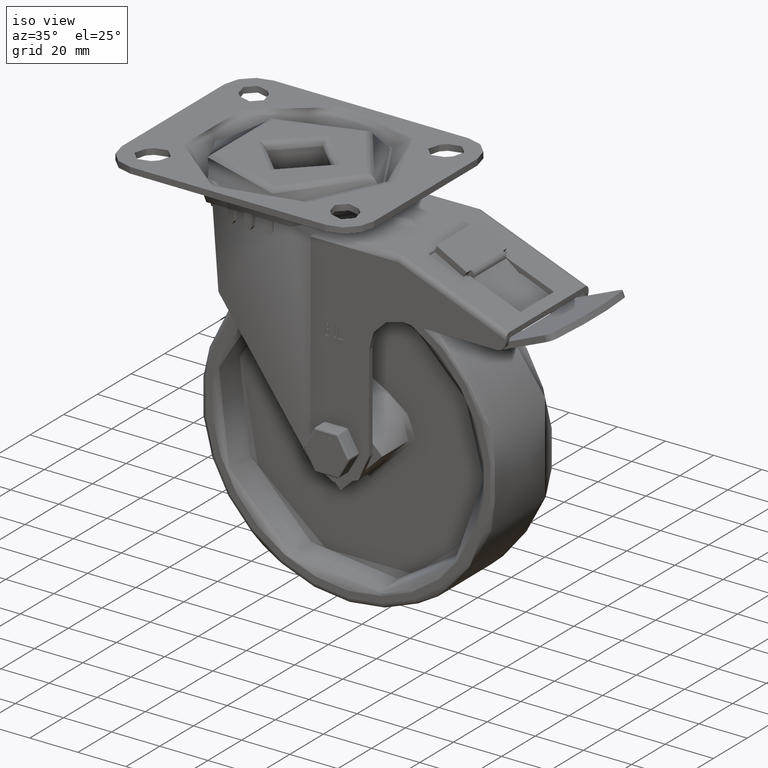
[diagram: clean part render]
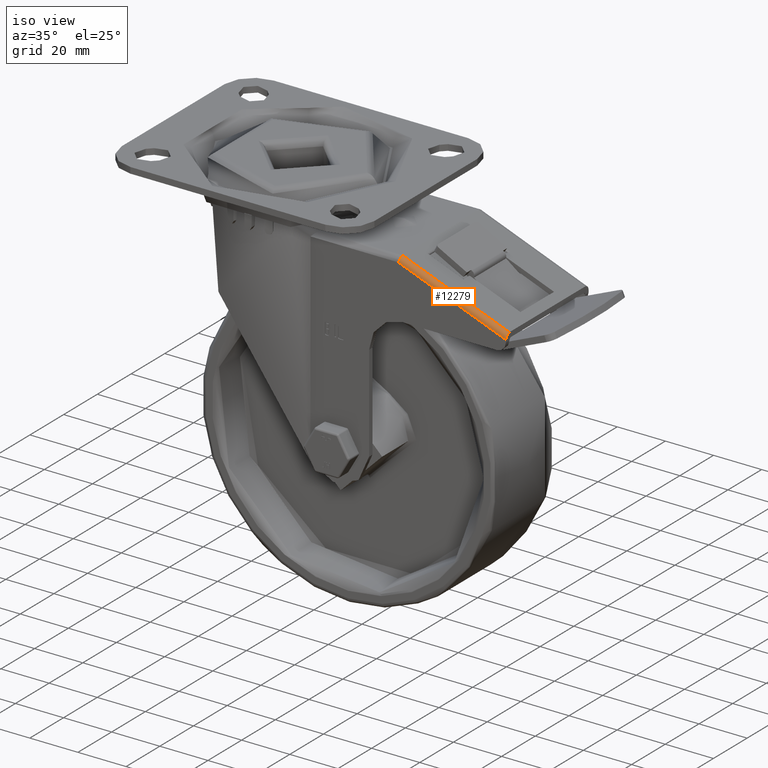
[diagram: same view with one face highlighted and labeled with its STEP entity id]
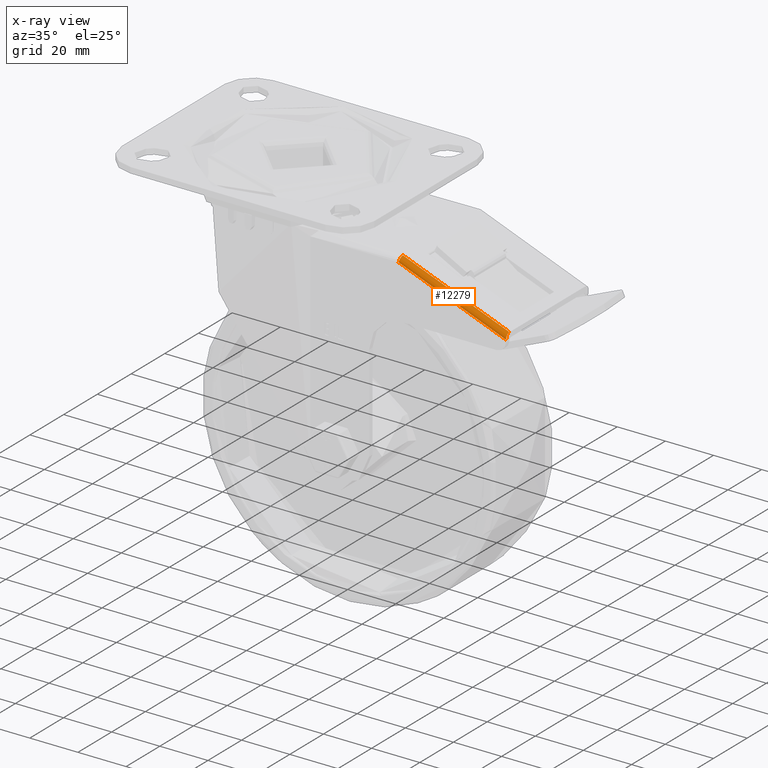
[diagram: x-ray of the same camera — body ghosted, the highlighted face saturated]
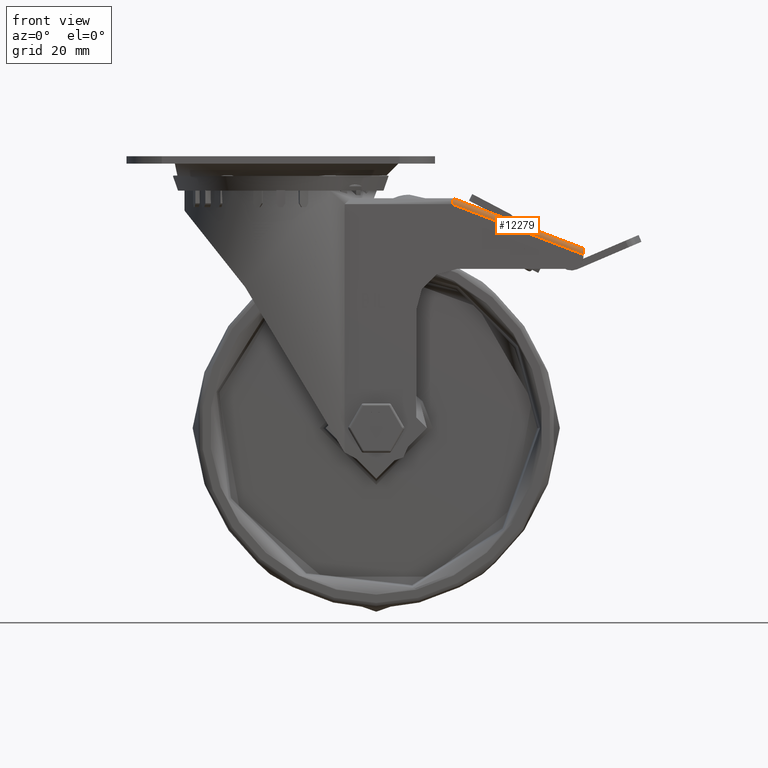
[diagram: same view with one face highlighted and labeled with its STEP entity id]
A machine part, iso view. The second image highlights one B-rep face of the part: STEP entity #12279.
The next image is the same camera in x-ray: the body ghosted, the highlighted face saturated — about 0% of this face is hidden behind the body in this view.
A second angle (front view) of the same face is appended — the face is thin or edge-on in the first view.
In plain terms, the highlighted cylindrical surface (edge-blend (fillet) strip) has radius 2 mm, axis along (-0.9335, 0, 0.3586).
Its self-contained STEP definition (entity closure, byte-faithful):
#232=ELLIPSE('',#13305,2.03411258582309,2.);
#238=ELLIPSE('',#13330,2.14251709924845,2.);
#1188=FACE_OUTER_BOUND('',#1898,.T.);
#1898=EDGE_LOOP('',(#9311,#9312,#9313,#9314));
#2858=LINE('',#18944,#4011);
#2859=LINE('',#18945,#4012);
#4011=VECTOR('',#15268,1000.);
#4012=VECTOR('',#15269,1000.);
#5560=VERTEX_POINT('',#18725);
#5561=VERTEX_POINT('',#18726);
#5592=VERTEX_POINT('',#18941);
#5593=VERTEX_POINT('',#18942);
#6913=EDGE_CURVE('',#5560,#5561,#232,.T.);
#6951=EDGE_CURVE('',#5592,#5593,#238,.T.);
#6952=EDGE_CURVE('',#5593,#5561,#2858,.T.);
#6953=EDGE_CURVE('',#5560,#5592,#2859,.T.);
#9311=ORIENTED_EDGE('',*,*,#6951,.T.);
#9312=ORIENTED_EDGE('',*,*,#6952,.T.);
#9313=ORIENTED_EDGE('',*,*,#6913,.F.);
#9314=ORIENTED_EDGE('',*,*,#6953,.T.);
#11935=CYLINDRICAL_SURFACE('',#13329,2.);
#12279=ADVANCED_FACE('',(#1188),#11935,.T.);
#13305=AXIS2_PLACEMENT_3D('',#18727,#15200,#15201);
#13329=AXIS2_PLACEMENT_3D('',#18940,#15264,#15265);
#13330=AXIS2_PLACEMENT_3D('',#18943,#15266,#15267);
#15200=DIRECTION('center_axis',(-0.983229745462057,0.,0.18237123577642));
#15201=DIRECTION('ref_axis',(0.18237123577642,-4.68185923229697E-16,0.983229745462057));
#15264=DIRECTION('center_axis',(-0.933481464722758,2.64697796016969E-17,
0.358625647464113));
#15265=DIRECTION('ref_axis',(0.253586627229291,-0.707106781186546,0.660071073817414));
#15266=DIRECTION('center_axis',(-1.,0.,2.54426109809932E-15));
#15267=DIRECTION('ref_axis',(2.54426109809932E-15,-2.02416526405473E-16,
1.));
#15268=DIRECTION('',(-0.933481464722758,4.02046008568646E-17,0.358625647464113));
#15269=DIRECTION('',(0.933481464722758,-4.02046008568646E-17,-0.358625647464113));
#18725=CARTESIAN_POINT('',(58.3790363740151,-24.5,-13.8000000000001));
#18726=CARTESIAN_POINT('',(58.75,-22.5,-11.8000000000001));
#18727=CARTESIAN_POINT('Origin',(58.3790363740151,-22.5,-13.8000000000001));
#18940=CARTESIAN_POINT('Origin',(86.2377046932041,-22.5,-24.5027652299711));
#18941=CARTESIAN_POINT('',(103.,-24.5,-30.9425170992487));
#18942=CARTESIAN_POINT('',(103.,-22.5,-28.8000000000002));
#18943=CARTESIAN_POINT('Origin',(103.,-22.5,-30.9425170992486));
#18944=CARTESIAN_POINT('',(86.9549559881323,-22.5,-22.6358023005256));
#18945=CARTESIAN_POINT('',(86.2377046932041,-24.5,-24.5027652299711));